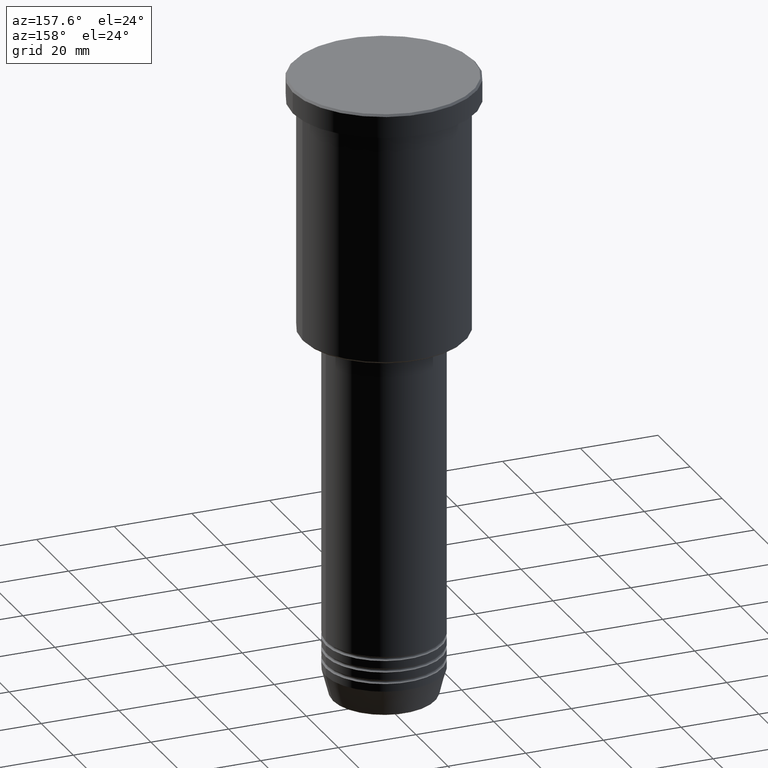
[diagram: clean part render]
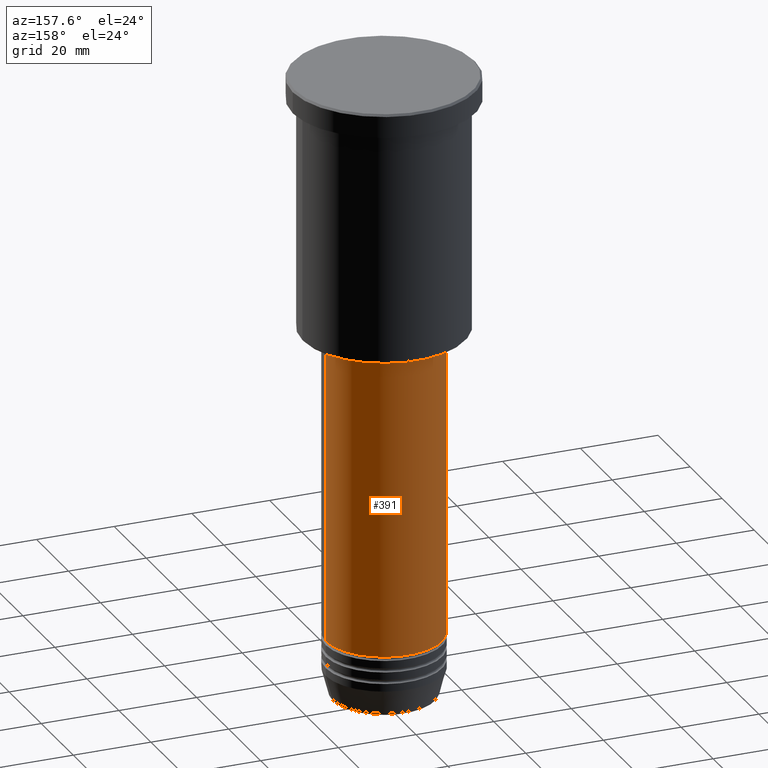
[diagram: same view with one face highlighted and labeled with its STEP entity id]
A machine part, auxiliary view. The second image highlights one B-rep face of the part: STEP entity #391.
In plain terms, the highlighted cylindrical surface (partial cylindrical patch) has radius 15 mm, axis along (-0, -0, 1).
Its self-contained STEP definition (entity closure, byte-faithful):
#23 = EDGE_CURVE ( 'NONE', #522, #803, #1131, .T. ) ;
#47 = EDGE_CURVE ( 'NONE', #261, #522, #971, .T. ) ;
#58 = CARTESIAN_POINT ( 'NONE',  ( 0.000000000000000000, 0.000000000000000000, -67.00000000000000000 ) ) ;
#158 = CARTESIAN_POINT ( 'NONE',  ( 0.000000000000000000, 0.000000000000000000, 0.000000000000000000 ) ) ;
#173 = DIRECTION ( 'NONE',  ( -0.000000000000000000, -0.000000000000000000, 1.000000000000000000 ) ) ;
#199 = EDGE_CURVE ( 'NONE', #953, #803, #720, .T. ) ;
#239 = DIRECTION ( 'NONE',  ( -0.000000000000000000, -0.000000000000000000, 1.000000000000000000 ) ) ;
#261 = VERTEX_POINT ( 'NONE', #757 ) ;
#262 = FACE_OUTER_BOUND ( 'NONE', #276, .T. ) ;
#263 = CARTESIAN_POINT ( 'NONE',  ( -15.00000000000000000, 1.836970198721029589E-15, 0.000000000000000000 ) ) ;
#276 = EDGE_LOOP ( 'NONE', ( #775, #745, #349, #925 ) ) ;
#329 = VECTOR ( 'NONE', #173, 1000.000000000000000 ) ;
#340 = CARTESIAN_POINT ( 'NONE',  ( 15.00000000000000000, 0.000000000000000000, 0.000000000000000000 ) ) ;
#344 = DIRECTION ( 'NONE',  ( -0.000000000000000000, -0.000000000000000000, 1.000000000000000000 ) ) ;
#349 = ORIENTED_EDGE ( 'NONE', *, *, #23, .F. ) ;
#355 = CYLINDRICAL_SURFACE ( 'NONE', #869, 15.00000000000000000 ) ;
#391 = ADVANCED_FACE ( 'NONE', ( #262 ), #355, .T. ) ;
#422 = DIRECTION ( 'NONE',  ( 1.000000000000000000, 0.000000000000000000, 0.000000000000000000 ) ) ;
#522 = VERTEX_POINT ( 'NONE', #1019 ) ;
#720 = LINE ( 'NONE', #263, #329 ) ;
#732 = DIRECTION ( 'NONE',  ( -0.000000000000000000, -0.000000000000000000, 1.000000000000000000 ) ) ;
#745 = ORIENTED_EDGE ( 'NONE', *, *, #199, .T. ) ;
#757 = CARTESIAN_POINT ( 'NONE',  ( 15.00000000000000000, 0.000000000000000000, -144.9999999999999716 ) ) ;
#769 = CIRCLE ( 'NONE', #826, 15.00000000000000000 ) ;
#775 = ORIENTED_EDGE ( 'NONE', *, *, #863, .T. ) ;
#798 = DIRECTION ( 'NONE',  ( -0.000000000000000000, -0.000000000000000000, 1.000000000000000000 ) ) ;
#803 = VERTEX_POINT ( 'NONE', #811 ) ;
#811 = CARTESIAN_POINT ( 'NONE',  ( -15.00000000000000000, 1.836970198721029589E-15, -67.00000000000000000 ) ) ;
#826 = AXIS2_PLACEMENT_3D ( 'NONE', #1142, #344, #422 ) ;
#833 = AXIS2_PLACEMENT_3D ( 'NONE', #58, #239, #1062 ) ;
#863 = EDGE_CURVE ( 'NONE', #261, #953, #769, .T. ) ;
#869 = AXIS2_PLACEMENT_3D ( 'NONE', #158, #732, #907 ) ;
#907 = DIRECTION ( 'NONE',  ( 1.000000000000000000, 0.000000000000000000, 0.000000000000000000 ) ) ;
#925 = ORIENTED_EDGE ( 'NONE', *, *, #47, .F. ) ;
#953 = VERTEX_POINT ( 'NONE', #1182 ) ;
#967 = VECTOR ( 'NONE', #798, 1000.000000000000000 ) ;
#971 = LINE ( 'NONE', #340, #967 ) ;
#1019 = CARTESIAN_POINT ( 'NONE',  ( 15.00000000000000000, 0.000000000000000000, -67.00000000000000000 ) ) ;
#1062 = DIRECTION ( 'NONE',  ( 1.000000000000000000, 0.000000000000000000, 0.000000000000000000 ) ) ;
#1131 = CIRCLE ( 'NONE', #833, 15.00000000000000000 ) ;
#1142 = CARTESIAN_POINT ( 'NONE',  ( 0.000000000000000000, 0.000000000000000000, -144.9999999999999716 ) ) ;
#1182 = CARTESIAN_POINT ( 'NONE',  ( -15.00000000000000000, 1.836970198721029589E-15, -144.9999999999999716 ) ) ;